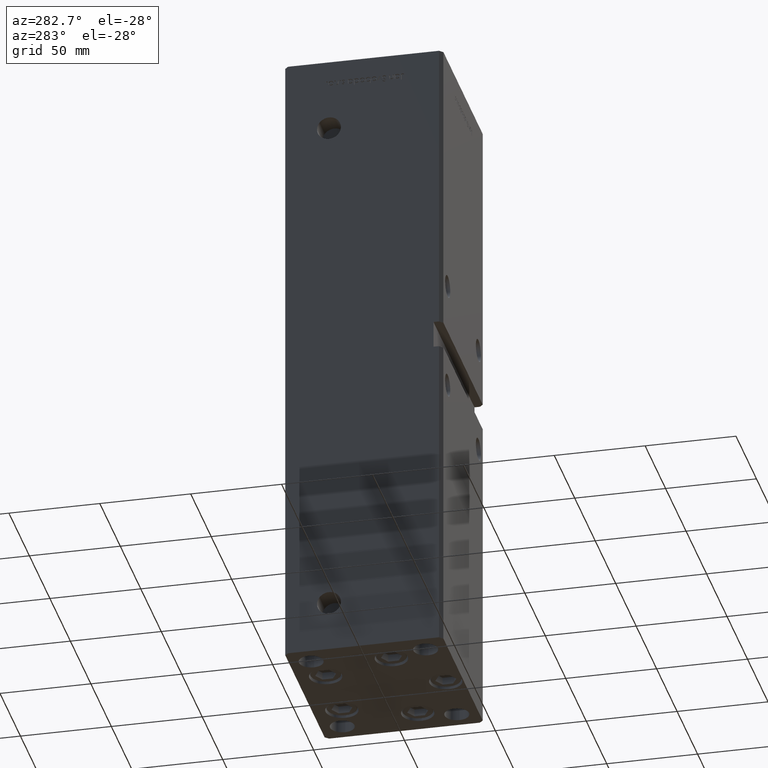
[diagram: clean part render]
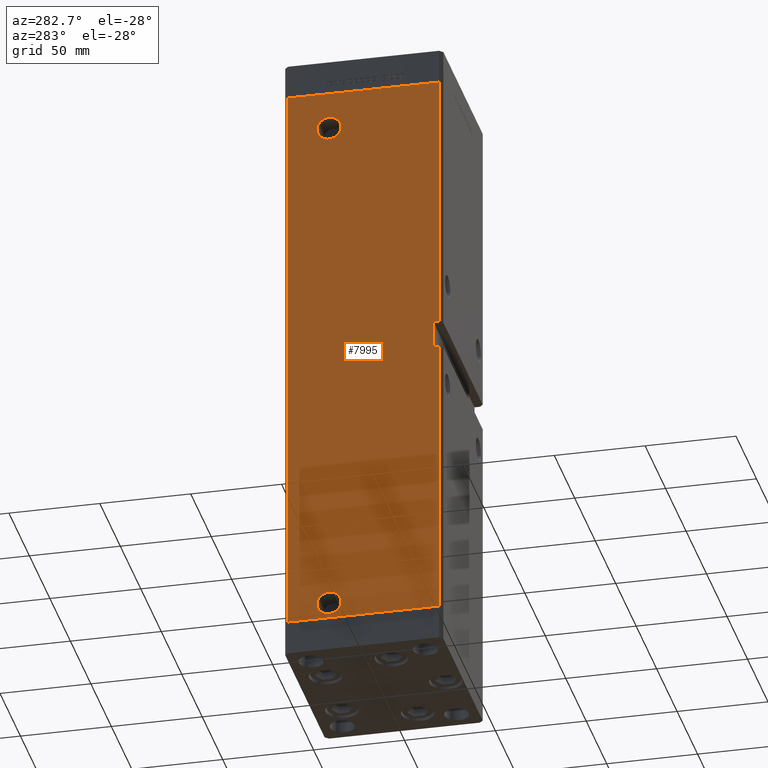
[diagram: same view with one face highlighted and labeled with its STEP entity id]
A machine part, auxiliary view. The second image highlights one B-rep face of the part: STEP entity #7995.
In plain terms, the highlighted planar face has unit normal (1, 0, 0).
Its self-contained STEP definition (entity closure, byte-faithful):
#36 = CARTESIAN_POINT ( 'NONE',  ( -50.00000000000000711, 12.41999999999995552, 297.5000000000000000 ) ) ;
#428 = CIRCLE ( 'NONE', #38149, 6.580000000000002736 ) ;
#1135 = ORIENTED_EDGE ( 'NONE', *, *, #46879, .F. ) ;
#1475 = LINE ( 'NONE', #49850, #15591 ) ;
#1831 = CARTESIAN_POINT ( 'NONE',  ( -50.00000000000001421, 41.49999999999999289, 0.000000000000000000 ) ) ;
#2688 = DIRECTION ( 'NONE',  ( -1.000000000000000000, -2.275047181608927644E-16, 0.000000000000000000 ) ) ;
#3333 = CARTESIAN_POINT ( 'NONE',  ( -50.00000000000000711, 19.00000000000000000, 297.5000000000000000 ) ) ;
#3492 = CARTESIAN_POINT ( 'NONE',  ( -50.00000000000000711, 12.41999999999999638, 9.000000000000007105 ) ) ;
#4202 = LINE ( 'NONE', #40746, #43231 ) ;
#4372 = VECTOR ( 'NONE', #51768, 1000.000000000000000 ) ;
#4471 = EDGE_LOOP ( 'NONE', ( #17992, #26900 ) ) ;
#6393 = CARTESIAN_POINT ( 'NONE',  ( -50.00000000000000711, 25.58000000000000185, 9.000000000000007105 ) ) ;
#7219 = VERTEX_POINT ( 'NONE', #6393 ) ;
#7631 = EDGE_CURVE ( 'NONE', #17470, #33531, #51761, .T. ) ;
#7974 = DIRECTION ( 'NONE',  ( -1.000000000000000000, -2.275047181608927644E-16, 0.000000000000000000 ) ) ;
#7995 = ADVANCED_FACE ( 'NONE', ( #33068, #45155, #24202 ), #28775, .F. ) ;
#8337 = DIRECTION ( 'NONE',  ( -3.344045254895050480E-16, 1.000000000000000000, 0.000000000000000000 ) ) ;
#8348 = CARTESIAN_POINT ( 'NONE',  ( -49.99999999999997868, -38.50000000000000000, 173.0000000000000284 ) ) ;
#9420 = CARTESIAN_POINT ( 'NONE',  ( -50.00000000000001421, 41.49999999999999289, 0.000000000000000000 ) ) ;
#9638 = AXIS2_PLACEMENT_3D ( 'NONE', #51595, #2688, #15042 ) ;
#9982 = LINE ( 'NONE', #26391, #22823 ) ;
#9992 = EDGE_CURVE ( 'NONE', #33670, #17191, #33112, .T. ) ;
#10057 = VERTEX_POINT ( 'NONE', #3492 ) ;
#10217 = EDGE_LOOP ( 'NONE', ( #11877, #43862 ) ) ;
#10640 = CARTESIAN_POINT ( 'NONE',  ( -50.00000000000001421, 41.49999999999999289, 318.5000000000000000 ) ) ;
#10901 = EDGE_CURVE ( 'NONE', #7219, #10057, #30739, .T. ) ;
#11877 = ORIENTED_EDGE ( 'NONE', *, *, #21701, .F. ) ;
#12673 = DIRECTION ( 'NONE',  ( 3.344045254895050973E-16, -1.000000000000000000, 0.000000000000000000 ) ) ;
#13579 = CARTESIAN_POINT ( 'NONE',  ( -49.99999999999997868, -38.50000000000000000, 173.0000000000000284 ) ) ;
#13832 = ORIENTED_EDGE ( 'NONE', *, *, #37667, .F. ) ;
#15042 = DIRECTION ( 'NONE',  ( 0.000000000000000000, -1.000000000000000000, 0.000000000000000000 ) ) ;
#15591 = VECTOR ( 'NONE', #42305, 1000.000000000000000 ) ;
#16671 = DIRECTION ( 'NONE',  ( -4.625929269271481969E-16, 0.000000000000000000, -1.000000000000000000 ) ) ;
#17191 = VERTEX_POINT ( 'NONE', #33763 ) ;
#17303 = AXIS2_PLACEMENT_3D ( 'NONE', #3333, #52494, #32075 ) ;
#17470 = VERTEX_POINT ( 'NONE', #19108 ) ;
#17992 = ORIENTED_EDGE ( 'NONE', *, *, #52523, .F. ) ;
#18967 = LINE ( 'NONE', #31609, #4372 ) ;
#19108 = CARTESIAN_POINT ( 'NONE',  ( -50.00000000000001421, 41.49999999999999289, 318.5000000000000000 ) ) ;
#19151 = VERTEX_POINT ( 'NONE', #41257 ) ;
#19393 = CARTESIAN_POINT ( 'NONE',  ( -49.99999999999997868, -41.50000000000000000, 173.0000000000000284 ) ) ;
#20597 = DIRECTION ( 'NONE',  ( -0.000000000000000000, -0.000000000000000000, -1.000000000000000000 ) ) ;
#20943 = CARTESIAN_POINT ( 'NONE',  ( -49.99999999999998579, -41.49999999999999289, 318.5000000000000000 ) ) ;
#21534 = EDGE_CURVE ( 'NONE', #52581, #44719, #1475, .T. ) ;
#21701 = EDGE_CURVE ( 'NONE', #51131, #25353, #30183, .T. ) ;
#22823 = VECTOR ( 'NONE', #47070, 1000.000000000000000 ) ;
#23304 = ORIENTED_EDGE ( 'NONE', *, *, #49259, .F. ) ;
#23397 = CIRCLE ( 'NONE', #9638, 6.580000000000044480 ) ;
#24202 = FACE_BOUND ( 'NONE', #10217, .T. ) ;
#24473 = DIRECTION ( 'NONE',  ( 1.000000000000000000, 3.344045254895050480E-16, -0.000000000000000000 ) ) ;
#25243 = DIRECTION ( 'NONE',  ( -0.000000000000000000, -1.000000000000000000, -0.000000000000000000 ) ) ;
#25353 = VERTEX_POINT ( 'NONE', #27129 ) ;
#26391 = CARTESIAN_POINT ( 'NONE',  ( -49.99999999999998579, -41.49999999999999289, 318.5000000000000000 ) ) ;
#26900 = ORIENTED_EDGE ( 'NONE', *, *, #10901, .F. ) ;
#27129 = CARTESIAN_POINT ( 'NONE',  ( -50.00000000000000711, 25.58000000000004448, 297.5000000000000000 ) ) ;
#28485 = EDGE_CURVE ( 'NONE', #25353, #51131, #23397, .T. ) ;
#28775 = PLANE ( 'NONE',  #36666 ) ;
#29047 = AXIS2_PLACEMENT_3D ( 'NONE', #31467, #51096, #34694 ) ;
#29081 = CARTESIAN_POINT ( 'NONE',  ( -49.99999999999998579, -41.49999999999992895, 158.0000000000000000 ) ) ;
#29187 = VERTEX_POINT ( 'NONE', #29081 ) ;
#29381 = VECTOR ( 'NONE', #25243, 1000.000000000000000 ) ;
#29838 = VECTOR ( 'NONE', #12673, 1000.000000000000000 ) ;
#30183 = CIRCLE ( 'NONE', #17303, 6.580000000000044480 ) ;
#30739 = CIRCLE ( 'NONE', #29047, 6.580000000000002736 ) ;
#31330 = ORIENTED_EDGE ( 'NONE', *, *, #7631, .F. ) ;
#31467 = CARTESIAN_POINT ( 'NONE',  ( -50.00000000000000711, 19.00000000000000000, 9.000000000000007105 ) ) ;
#31609 = CARTESIAN_POINT ( 'NONE',  ( -49.99999999999998579, -41.49999999999999289, 318.5000000000000000 ) ) ;
#32075 = DIRECTION ( 'NONE',  ( 0.000000000000000000, -1.000000000000000000, 0.000000000000000000 ) ) ;
#32164 = DIRECTION ( 'NONE',  ( 0.000000000000000000, -1.000000000000000000, 0.000000000000000000 ) ) ;
#33068 = FACE_OUTER_BOUND ( 'NONE', #40265, .T. ) ;
#33112 = LINE ( 'NONE', #9420, #29838 ) ;
#33410 = ORIENTED_EDGE ( 'NONE', *, *, #21534, .T. ) ;
#33531 = VERTEX_POINT ( 'NONE', #20943 ) ;
#33670 = VERTEX_POINT ( 'NONE', #1831 ) ;
#33763 = CARTESIAN_POINT ( 'NONE',  ( -49.99999999999998579, -41.49999999999999289, 0.000000000000000000 ) ) ;
#33825 = LINE ( 'NONE', #50488, #29381 ) ;
#34694 = DIRECTION ( 'NONE',  ( 0.000000000000000000, -1.000000000000000000, 0.000000000000000000 ) ) ;
#36417 = ORIENTED_EDGE ( 'NONE', *, *, #43105, .F. ) ;
#36458 = CARTESIAN_POINT ( 'NONE',  ( -50.00000000000000711, 19.00000000000000000, 9.000000000000007105 ) ) ;
#36666 = AXIS2_PLACEMENT_3D ( 'NONE', #45420, #24473, #8337 ) ;
#37667 = EDGE_CURVE ( 'NONE', #29187, #17191, #9982, .T. ) ;
#38017 = ORIENTED_EDGE ( 'NONE', *, *, #50830, .T. ) ;
#38149 = AXIS2_PLACEMENT_3D ( 'NONE', #36458, #7974, #32164 ) ;
#39110 = ORIENTED_EDGE ( 'NONE', *, *, #9992, .T. ) ;
#40043 = VECTOR ( 'NONE', #43167, 1000.000000000000000 ) ;
#40265 = EDGE_LOOP ( 'NONE', ( #13832, #1135, #23304, #33410, #36417, #31330, #38017, #39110 ) ) ;
#40746 = CARTESIAN_POINT ( 'NONE',  ( -50.00000000000001421, 41.49999999999999289, 318.5000000000000000 ) ) ;
#41257 = CARTESIAN_POINT ( 'NONE',  ( -49.99999999999998579, -38.50000000000000000, 158.0000000000000000 ) ) ;
#41457 = VECTOR ( 'NONE', #16671, 1000.000000000000000 ) ;
#42305 = DIRECTION ( 'NONE',  ( -0.000000000000000000, -1.000000000000000000, -0.000000000000000000 ) ) ;
#43105 = EDGE_CURVE ( 'NONE', #33531, #44719, #18967, .T. ) ;
#43167 = DIRECTION ( 'NONE',  ( 3.344045254895050973E-16, -1.000000000000000000, 0.000000000000000000 ) ) ;
#43231 = VECTOR ( 'NONE', #20597, 1000.000000000000000 ) ;
#43862 = ORIENTED_EDGE ( 'NONE', *, *, #28485, .F. ) ;
#44719 = VERTEX_POINT ( 'NONE', #19393 ) ;
#45155 = FACE_BOUND ( 'NONE', #4471, .T. ) ;
#45420 = CARTESIAN_POINT ( 'NONE',  ( -50.00000000000001421, 41.49999999999999289, 318.5000000000000000 ) ) ;
#46879 = EDGE_CURVE ( 'NONE', #19151, #29187, #33825, .T. ) ;
#47070 = DIRECTION ( 'NONE',  ( -0.000000000000000000, -0.000000000000000000, -1.000000000000000000 ) ) ;
#49259 = EDGE_CURVE ( 'NONE', #52581, #19151, #49993, .T. ) ;
#49850 = CARTESIAN_POINT ( 'NONE',  ( -49.99999999999997868, -38.50000000000000000, 173.0000000000000284 ) ) ;
#49993 = LINE ( 'NONE', #8348, #41457 ) ;
#50488 = CARTESIAN_POINT ( 'NONE',  ( -49.99999999999998579, -38.50000000000000000, 158.0000000000000000 ) ) ;
#50830 = EDGE_CURVE ( 'NONE', #17470, #33670, #4202, .T. ) ;
#51096 = DIRECTION ( 'NONE',  ( -1.000000000000000000, -2.275047181608927644E-16, 0.000000000000000000 ) ) ;
#51131 = VERTEX_POINT ( 'NONE', #36 ) ;
#51595 = CARTESIAN_POINT ( 'NONE',  ( -50.00000000000000711, 19.00000000000000000, 297.5000000000000000 ) ) ;
#51761 = LINE ( 'NONE', #10640, #40043 ) ;
#51768 = DIRECTION ( 'NONE',  ( -0.000000000000000000, -0.000000000000000000, -1.000000000000000000 ) ) ;
#52494 = DIRECTION ( 'NONE',  ( -1.000000000000000000, -2.275047181608927644E-16, 0.000000000000000000 ) ) ;
#52523 = EDGE_CURVE ( 'NONE', #10057, #7219, #428, .T. ) ;
#52581 = VERTEX_POINT ( 'NONE', #13579 ) ;